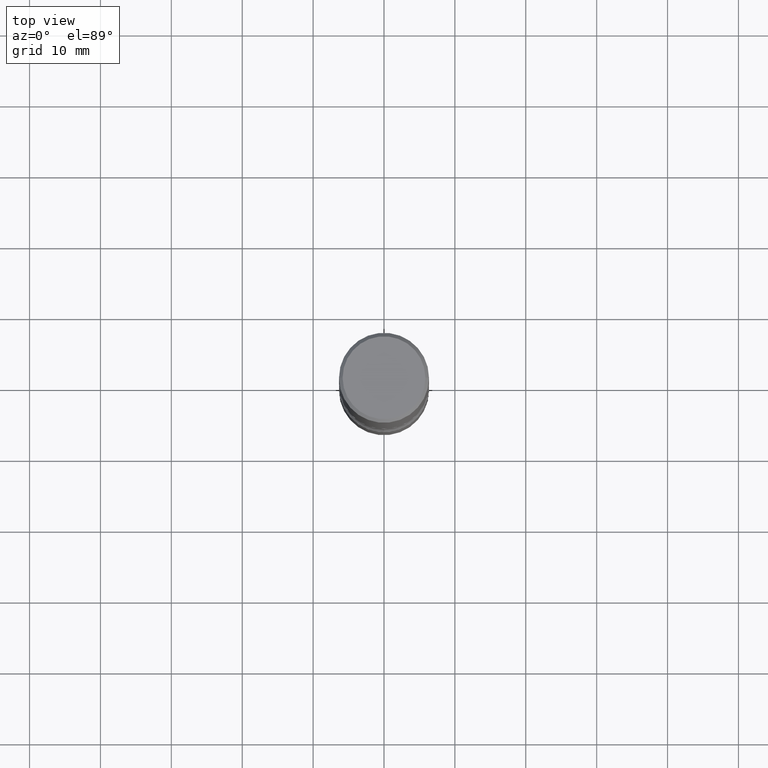
[diagram: clean part render]
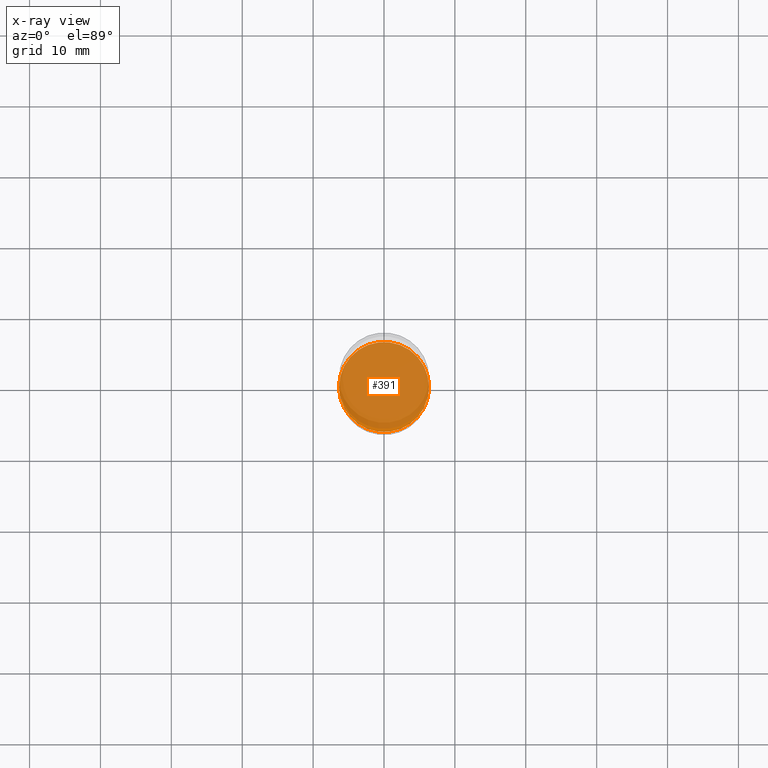
[diagram: x-ray — body ghosted, one internal face saturated and labeled with its STEP entity id]
A machine part, top view, then the same camera in x-ray: the body is ghosted and one INTERNAL B-rep face — a face not visible from any outside direction — is saturated and labeled: STEP entity #391.
In plain terms, the highlighted planar face has unit normal (0, -0, -1).
Its self-contained STEP definition (entity closure, byte-faithful):
#103 = CARTESIAN_POINT ( 'NONE',  ( 7.336406418555409790E-29, -1.047444401652943635E-14, -3.000000000000000444 ) ) ;
#115 = EDGE_CURVE ( 'NONE', #366, #129, #421, .T. ) ;
#129 = VERTEX_POINT ( 'NONE', #157 ) ;
#152 = DIRECTION ( 'NONE',  ( 1.000000000000000000, -6.982962677686270655E-15, 0.000000000000000000 ) ) ;
#157 = CARTESIAN_POINT ( 'NONE',  ( 0.2500000000000002776, -1.222018468595100619E-14, -3.000000000000000444 ) ) ;
#205 = AXIS2_PLACEMENT_3D ( 'NONE', #496, #506, #550 ) ;
#235 = FACE_OUTER_BOUND ( 'NONE', #295, .T. ) ;
#265 = CIRCLE ( 'NONE', #205, 0.2500000000000002776 ) ;
#295 = EDGE_LOOP ( 'NONE', ( #473, #387 ) ) ;
#303 = AXIS2_PLACEMENT_3D ( 'NONE', #529, #363, #152 ) ;
#312 = AXIS2_PLACEMENT_3D ( 'NONE', #103, #409, #402 ) ;
#361 = PLANE ( 'NONE',  #312 ) ;
#363 = DIRECTION ( 'NONE',  ( -2.445468806185136597E-29, 3.491481338843145583E-15, 1.000000000000000000 ) ) ;
#366 = VERTEX_POINT ( 'NONE', #446 ) ;
#387 = ORIENTED_EDGE ( 'NONE', *, *, #115, .T. ) ;
#391 = ADVANCED_FACE ( 'NONE', ( #235 ), #361, .F. ) ;
#402 = DIRECTION ( 'NONE',  ( -1.000000000000000000, 6.982962677686265922E-15, -4.876176775795935793E-29 ) ) ;
#409 = DIRECTION ( 'NONE',  ( 2.438088387897960049E-29, -3.491481338843145188E-15, -1.000000000000000000 ) ) ;
#421 = CIRCLE ( 'NONE', #303, 0.2500000000000002776 ) ;
#446 = CARTESIAN_POINT ( 'NONE',  ( -0.2500000000000002776, -1.039145562646811219E-14, -3.000000000000000444 ) ) ;
#456 = EDGE_CURVE ( 'NONE', #129, #366, #265, .T. ) ;
#473 = ORIENTED_EDGE ( 'NONE', *, *, #456, .T. ) ;
#496 = CARTESIAN_POINT ( 'NONE',  ( 7.336406418555409790E-29, -1.047444401652943635E-14, -3.000000000000000444 ) ) ;
#506 = DIRECTION ( 'NONE',  ( -2.445468806185136597E-29, 3.491481338843145583E-15, 1.000000000000000000 ) ) ;
#529 = CARTESIAN_POINT ( 'NONE',  ( 7.336406418555409790E-29, -1.047444401652943635E-14, -3.000000000000000444 ) ) ;
#550 = DIRECTION ( 'NONE',  ( 1.000000000000000000, -6.982962677686270655E-15, 0.000000000000000000 ) ) ;